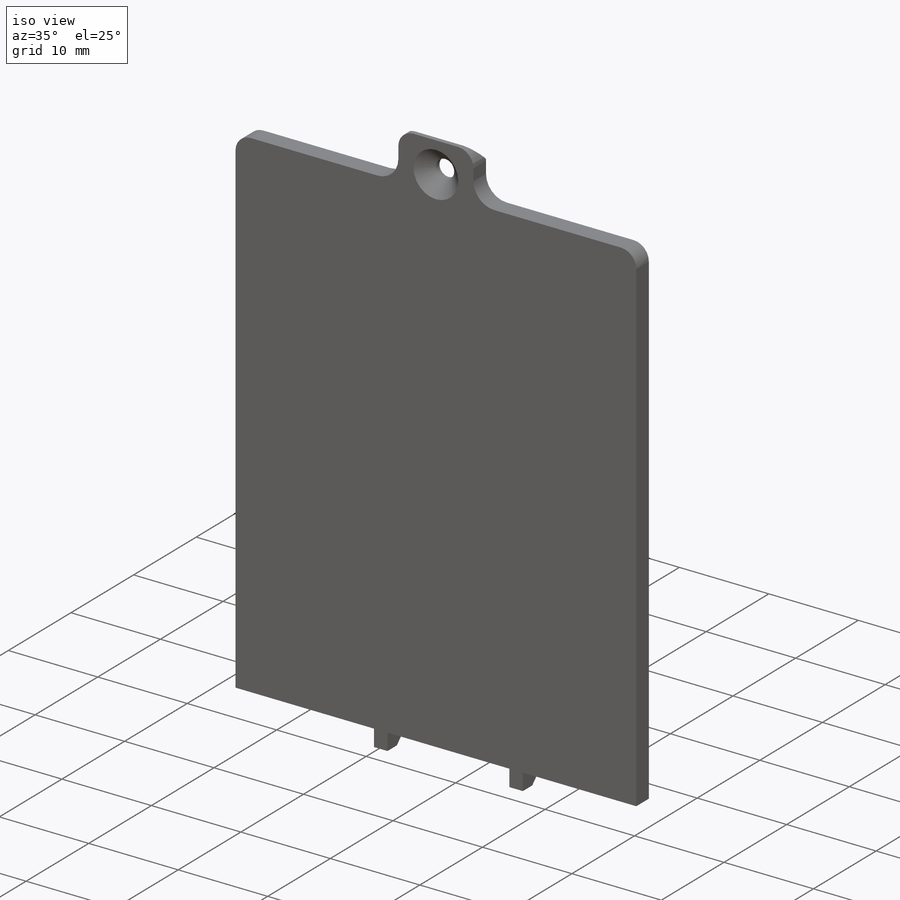
[diagram: iso view]
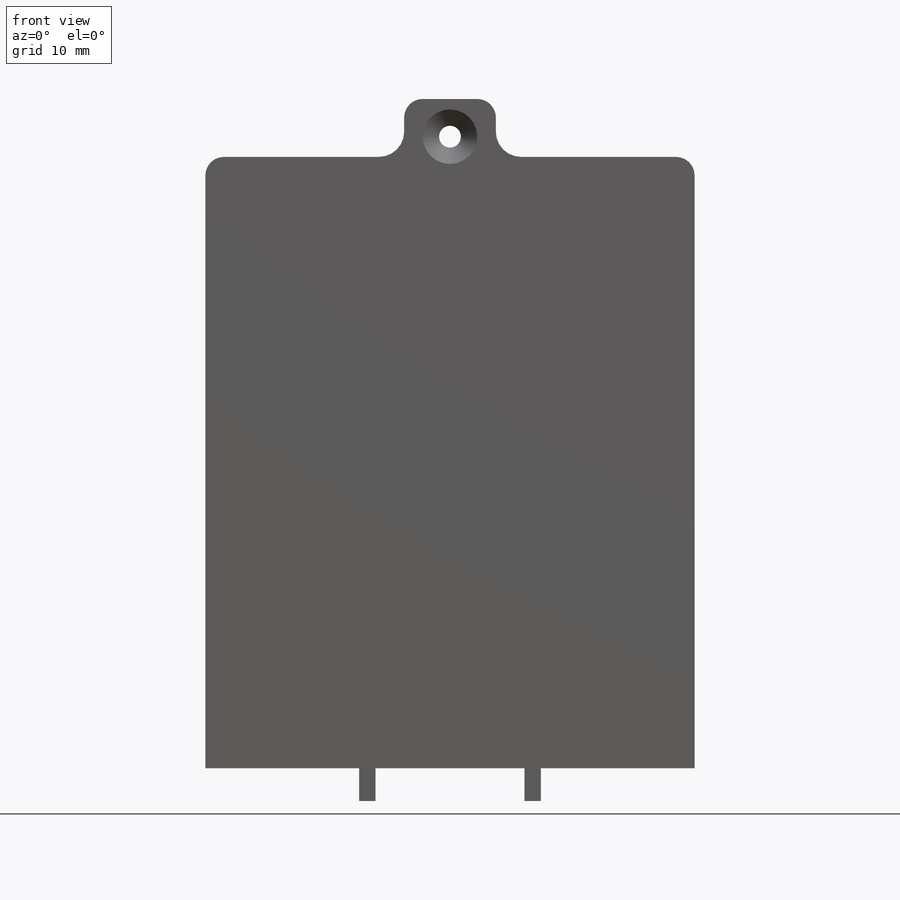
[diagram: front view]
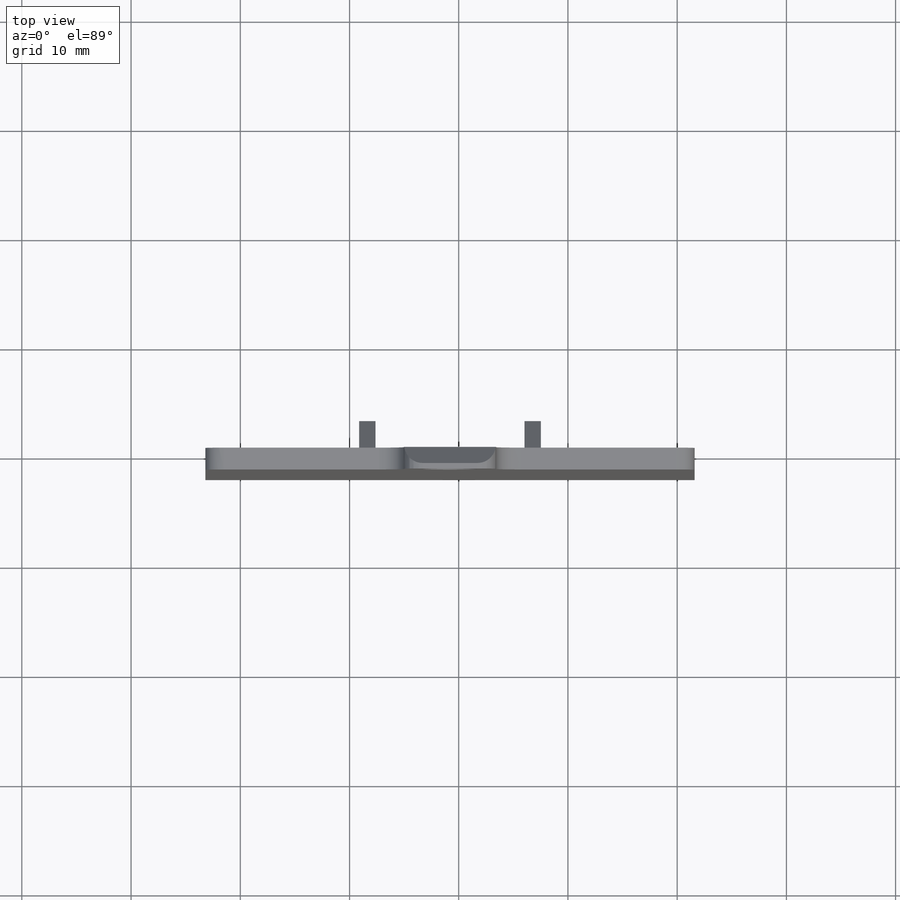
[diagram: top view]
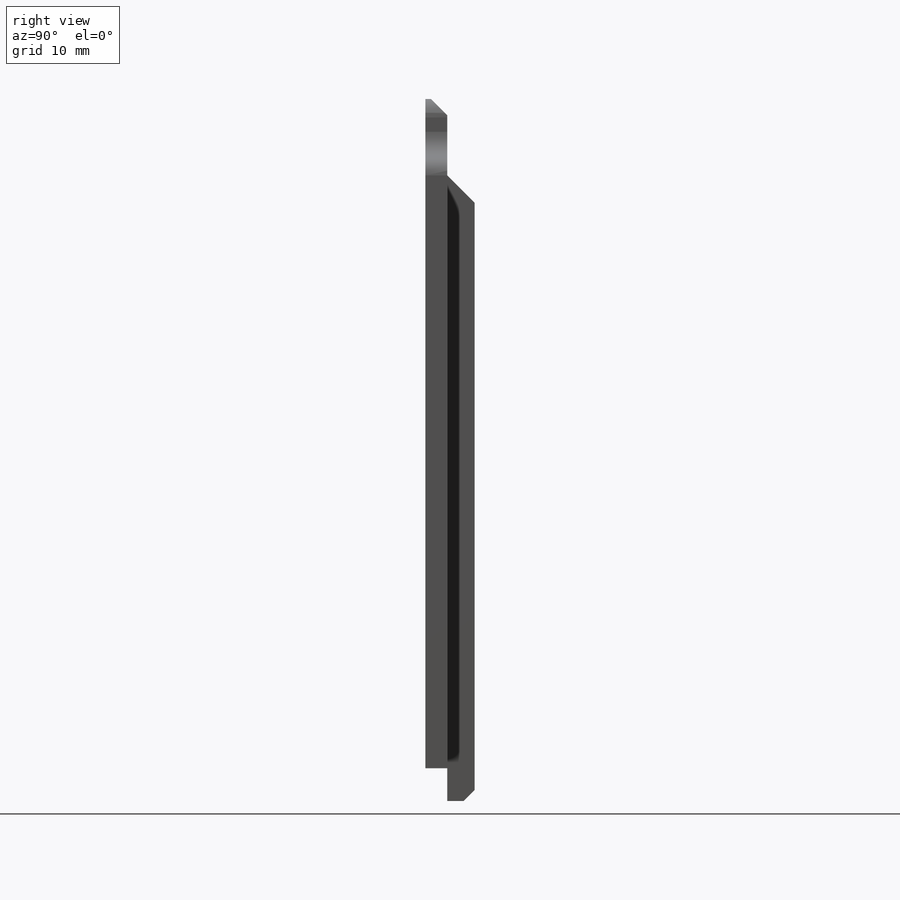
[diagram: right view]
SOLIDWORKS PART (.sldprt)
format: sldprt  version: not decoded by parser v0  size: 256,512 bytes
history: native  units: mm
features: sketch x5, chamfer x4, cut_extrude x3, extrude x2, material x1 (+13 scaffold rows collapsed)
feature tree (28):
  scaffold x13  (default folders/planes/origin — collapsed)
  material  "Material <not specified>"
  sketch  "Sketch1"  dims[D1=0.3mm]
  extrude  "Boss-Extrude1"  Depth=2mm
  sketch  "Sketch2"  dims[D1=2.0mm]
  cut_extrude  "Cut-Extrude1"  [1 undecoded]
  sketch  "Sketch3"  dims[c1.D1=1.0mm c1.D2=1.0mm c1.D3=1.0mm c1.D4=1.0mm c2.D3=1.0mm]
  cut_extrude  "Cut-Extrude2"  Depth=1mm
  sketch  "Sketch4"  dims[D1=15.133mm D2=1.5mm D3=3.0mm]
  extrude  "Boss-Extrude2"  Depth=3.5mm
  sketch  "Sketch5"
  cut_extrude  "Cut-Extrude3"  [1 undecoded]
  chamfer  "Chamfer1"  Distance=1mm Angle=45deg
  chamfer  "Chamfer2"  Distance=2.5mm Angle=45deg
  chamfer  "Chamfer3"  Distance=1.5mm Angle=45deg
  chamfer  "Chamfer4"  Distance=1.5mm Angle=45deg
decode coverage: 11 of 14 modeling features carry decoded parameters
note: 2 parameter values undecoded
note: suppression state not decoded; provenance and decode notes live in map.json
